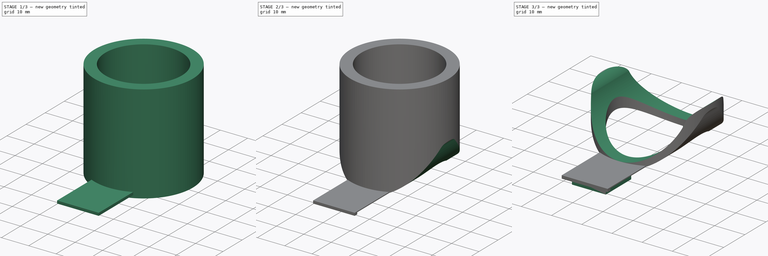
[diagram: build sequence overview — one tinted view per stage of 3, left to right]
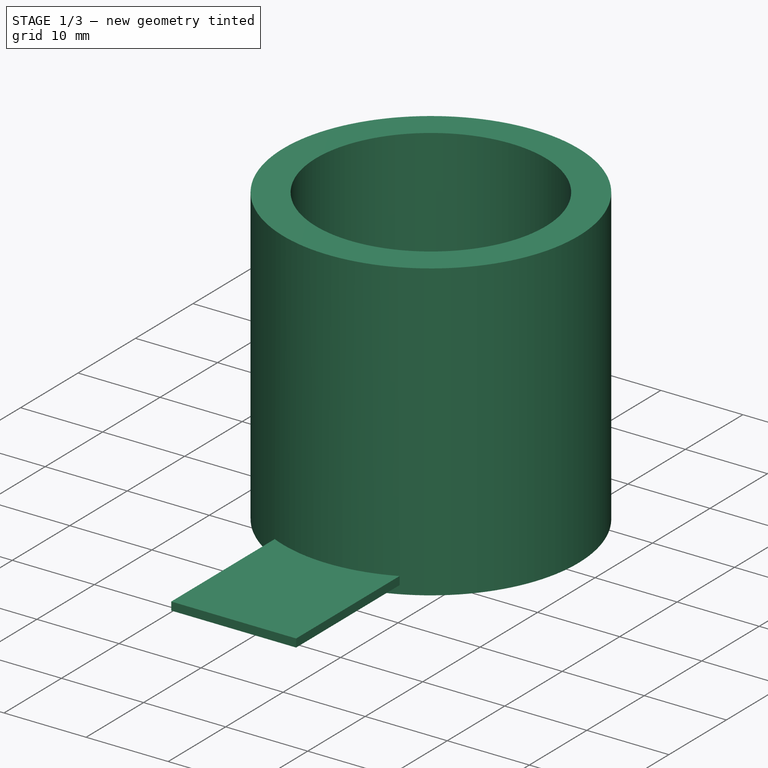
[diagram: stage 1 of 3 — iso view after this stage's code; geometry added in this stage tinted green]
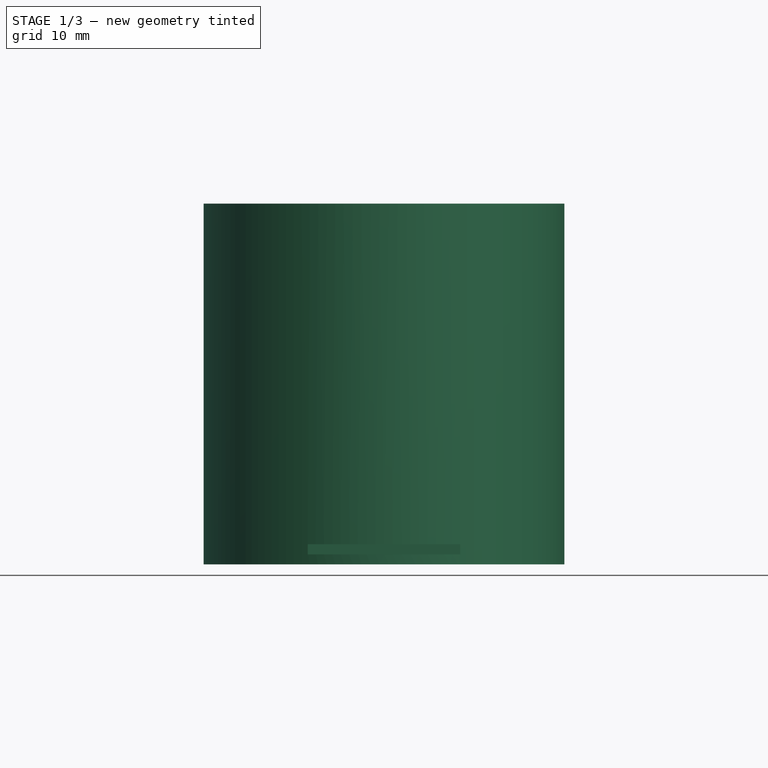
[diagram: stage 1 of 3 — front view after this stage's code; geometry added in this stage tinted green]
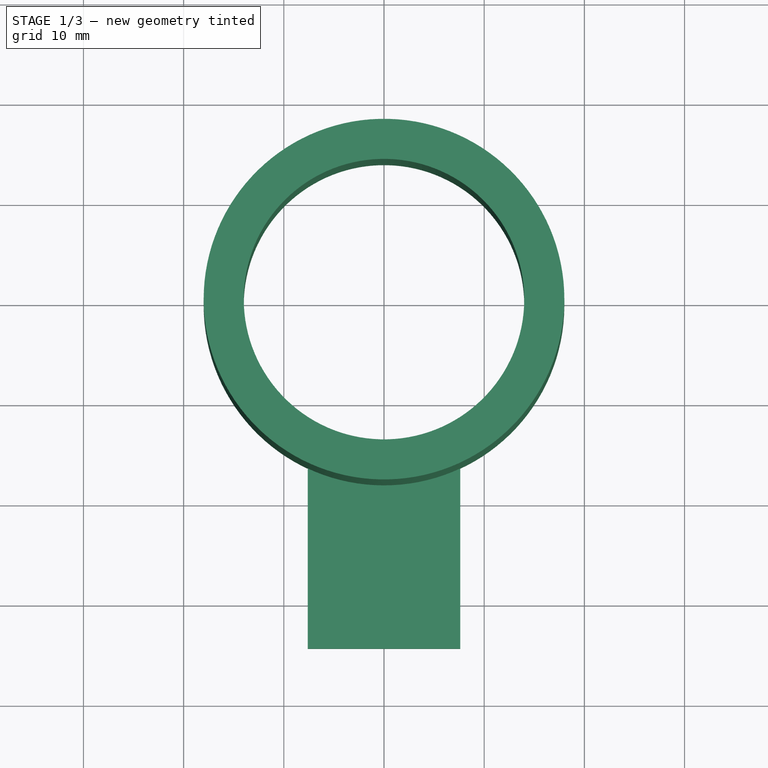
[diagram: stage 1 of 3 — top view after this stage's code; geometry added in this stage tinted green]
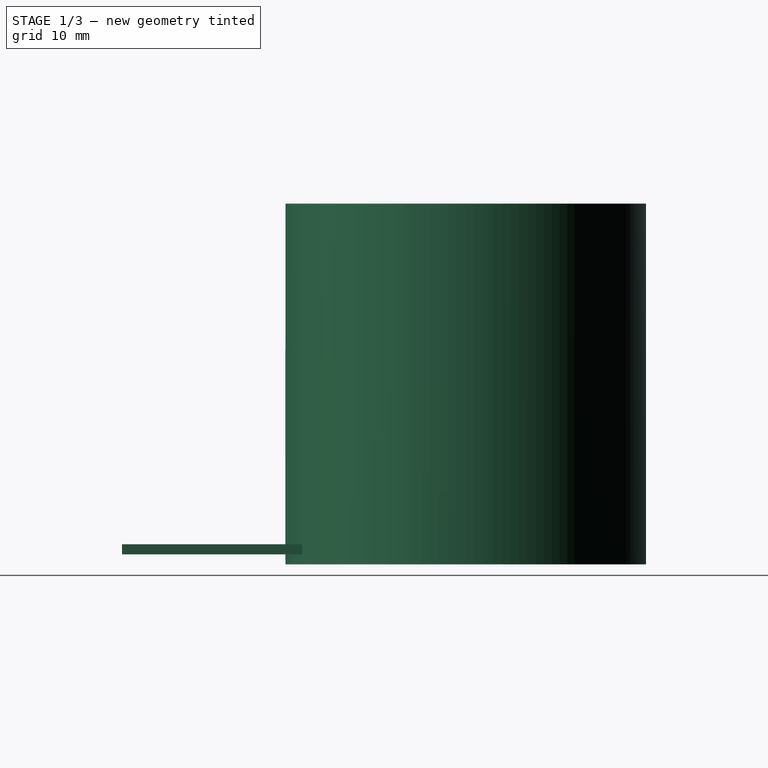
[diagram: stage 1 of 3 — right view after this stage's code; geometry added in this stage tinted green]
FCSTD DOCUMENT  (FreeCAD 0.19R24291 (Git))
Label: bruker7t_fus_single_coil_wrap2_cover2
License: All rights reserved
LicenseURL: http://en.wikipedia.org/wiki/All_rights_reserved
objects: Sketcher::SketchObject×8, PartDesign::Pad×5, PartDesign::Pocket×3, PartDesign::Body×1
note: 25 computed .brp shape members not serialized (recipe doc carries the construction recipe); baked Part::Feature solids carry a one-line shape summary decoded from their .brp

FEATURE [Sketcher::SketchObject] Sketch
  FullyConstrained = true
  MapMode = 5
  Support = -> [XY_Plane]
  sketch-geometry (1):
    g0: Circle CenterX=0 CenterY=0 CenterZ=0 NormalX=0 NormalY=0 NormalZ=1 AngleXU=0 Radius=18
  constraints (2):
    c: Radius(g0) = 18
    c: Coincident(g0,g-1)
FEATURE [PartDesign::Pad] Pad
  Direction = (1,1,1)
  Length = 36
  Length2 = 100
  Profile = -> Sketch
  Refine = true
  Type = 0
FEATURE [Sketcher::SketchObject] Sketch001
  FullyConstrained = true
  MapMode = 5
  Support = -> [XY_Plane]
  sketch-geometry (1):
    g0: Circle CenterX=0 CenterY=0 CenterZ=0 NormalX=0 NormalY=0 NormalZ=1 AngleXU=0 Radius=14
  constraints (2):
    c: Coincident(g0,g-1)
    c: Radius(g0) = 14
FEATURE [PartDesign::Pocket] Pocket
  BaseFeature = -> Pad
  Length = 5
  Length2 = 100
  Profile = -> Sketch001
  Refine = true
  Reversed = true
  Type = 1
FEATURE [Sketcher::SketchObject] Sketch002
  FullyConstrained = true
  MapMode = 5
  Placement = pos=(0,0,0) rot=(1,0,0;1.5708rad)
  Support = -> [XZ_Plane]
  sketch-geometry (8):
    g0: LineSegment StartX=-40 StartY=-10 StartZ=0 EndX=40 EndY=-10 EndZ=0
    g1: LineSegment StartX=40 StartY=-10 StartZ=0 EndX=40 EndY=18 EndZ=0
    g2: LineSegment StartX=40 StartY=18 StartZ=0 EndX=22 EndY=18 EndZ=0
    g3: ArcOfCircle CenterX=0 CenterY=18 CenterZ=0 NormalX=0 NormalY=0 NormalZ=1 AngleXU=0 Radius=18 StartAngle=3.34093 EndAngle=6.08385
    g4: LineSegment StartX=-22 StartY=18 StartZ=0 EndX=-40 EndY=18 EndZ=0
    g5: LineSegment StartX=-40 StartY=18 StartZ=0 EndX=-40 EndY=-10 EndZ=0
    g6: ArcOfCircle CenterX=-22 CenterY=13.5556 CenterZ=0 NormalX=0 NormalY=0 NormalZ=1 AngleXU=0 Radius=4.44444 StartAngle=0.199337 EndAngle=1.5708
    g7: ArcOfCircle CenterX=22 CenterY=13.5556 CenterZ=0 NormalX=0 NormalY=0 NormalZ=1 AngleXU=0 Radius=4.44444 StartAngle=1.5708 EndAngle=2.94226
  constraints (23):
    c: Coincident(g0,g1)
    c: Coincident(g1,g2)
    c: Horizontal(g2)
    c: Horizontal(g4)
    c: Coincident(g4,g5)
    c: Vertical(g5)
    c: Vertical(g1)
    c: PointOnObject(g3,g-2)
    c: Equal(g4,g2)
    c: DistanceX(g0,g0) = 80
    c: Radius(g3) = 18
    c: Coincident(g5,g0)
    c: Horizontal(g0)
    c: DistanceY(g-1,g3) = 18
    c: DistanceY(g1,g1) = 28
    c: DistanceY(g0,g-1) = 10
    c: Horizontal(g3,g3)
    c: DistanceX(g4,g4) = 18
    c: Symmetric(g2,g4,g-2)
    c: Tangent(g6,g3) = 1.5708
    c: Tangent(g6,g4) = -1.5708
    c: Coincident(g3,g7)
    c: Tangent(g7,g2) = -1.5708
FEATURE [Sketcher::SketchObject] Sketch003
  FullyConstrained = false
  MapMode = 5
  Placement = pos=(0,0,0) rot=(1,0,0;1.5708rad)
  Support = -> [XZ_Plane]
  sketch-geometry (8):
    g0: LineSegment StartX=-30 StartY=36 StartZ=0 EndX=30 EndY=36 EndZ=0
    g1: LineSegment StartX=30 StartY=36 StartZ=0 EndX=30 EndY=18 EndZ=0
    g2: LineSegment StartX=30 StartY=18 StartZ=0 EndX=20.4369 EndY=18 EndZ=0
    g3: ArcOfCircle CenterX=-4e-16 CenterY=18 CenterZ=0 NormalX=0 NormalY=0 NormalZ=1 AngleXU=0 Radius=16 StartAngle=3.35242 EndAngle=6.07235
    g4: LineSegment StartX=-20.4369 StartY=18 StartZ=0 EndX=-30 EndY=18 EndZ=0
    g5: LineSegment StartX=-30 StartY=18 StartZ=0 EndX=-30 EndY=36 EndZ=0
    g6: ArcOfCircle CenterX=20.4369 CenterY=12.898 CenterZ=0 NormalX=0 NormalY=0 NormalZ=1 AngleXU=0 Radius=5.10204 StartAngle=1.5708 EndAngle=2.79072
    g7: ArcOfCircle CenterX=-20.4369 CenterY=12.898 CenterZ=0 NormalX=0 NormalY=0 NormalZ=1 AngleXU=0 Radius=5.10204 StartAngle=0.350875 EndAngle=1.5708
  constraints (20):
    c: Coincident(g0,g1)
    c: Coincident(g1,g2)
    c: Horizontal(g2)
    c: Horizontal(g4)
    c: Coincident(g4,g5)
    c: Coincident(g5,g0)
    c: Vertical(g1)
    c: Vertical(g5)
    c: DistanceX(g0,g0) = 60
    c: Symmetric(g0,g0,g-2)
    c: Radius(g3) = 16
    c: DistanceY(g-1,g3) = 18
    c: DistanceY(g-1,g2) = 18
    c: DistanceY(g1,g1) = 18
    c: Symmetric(g3,g3,g-2)
    c: Symmetric(g2,g4,g-2)
    c: Coincident(g6,g3)
    c: Tangent(g2,g6) = -1.5708
    c: Coincident(g7,g3)
    c: Tangent(g4,g7) = -1.5708
FEATURE [Sketcher::SketchObject] Sketch004
  AttachmentOffset = pos=(0,0,1) rot=(0,0,1;0rad)
  FullyConstrained = false
  MapMode = 5
  Placement = pos=(0,0,1) rot=(0,0,1;0rad)
  Support = -> [XY_Plane]
  sketch-geometry (6):
    g0: LineSegment StartX=-7.60713 StartY=-16.3135 StartZ=0 EndX=7.60713 EndY=-16.3135 EndZ=0
    g1: LineSegment StartX=7.60713 StartY=-16.3135 StartZ=0 EndX=7.60713 EndY=-34.3135 EndZ=0
    g2: LineSegment StartX=7.60713 StartY=-34.3135 StartZ=0 EndX=-7.60713 EndY=-34.3135 EndZ=0
    g3: LineSegment StartX=-7.60713 StartY=-34.3135 StartZ=0 EndX=-7.60713 EndY=-16.3135 EndZ=0
    g4: LineSegment StartX=0 StartY=0 StartZ=0 EndX=7.60713 EndY=-16.3135 EndZ=0
    g5: LineSegment StartX=0 StartY=0 StartZ=0 EndX=0 EndY=21.3756 EndZ=0
  constraints (15):
    c: Coincident(g0,g1)
    c: Coincident(g1,g2)
    c: Coincident(g2,g3)
    c: Coincident(g3,g0)
    c: Horizontal(g2)
    c: Vertical(g1)
    c: Vertical(g3)
    c: DistanceY(g1,g1) = 18
    c: Symmetric(g0,g0,g-2)
    c: Coincident(g4,g-1)
    c: Coincident(g4,g0)
    c: Coincident(g5,g-1)
    c: Vertical(g5)
    c: Angle(g4,g5) = 2.70526
    c: Distance(g4) = 18
FEATURE [PartDesign::Pad] Pad001
  BaseFeature = -> Pocket
  Direction = (1,1,1)
  Length = 1
  Length2 = 100
  Profile = -> Sketch004
  Refine = true
  Type = 0
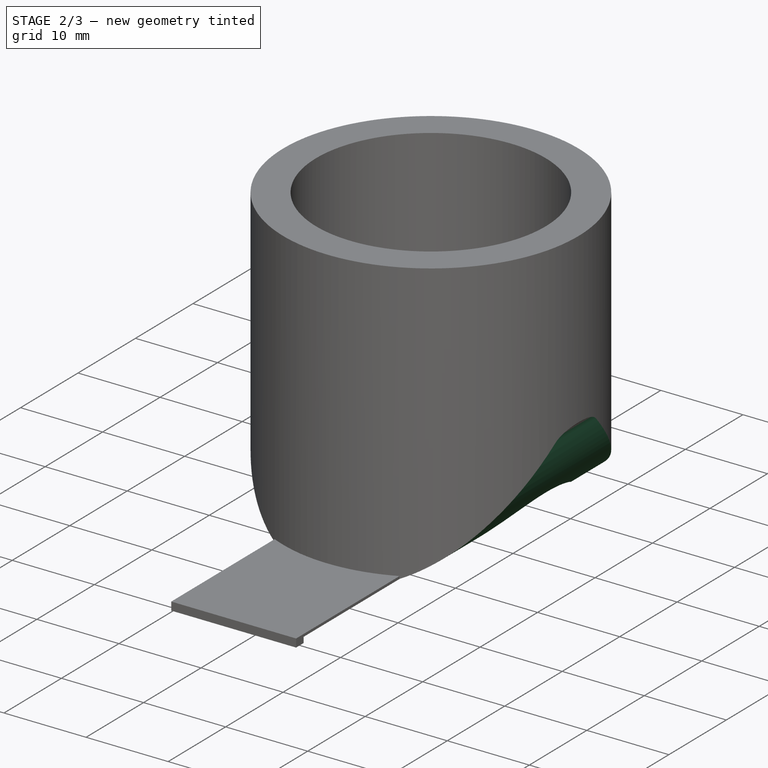
[diagram: stage 2 of 3 — iso view after this stage's code; geometry added in this stage tinted green]
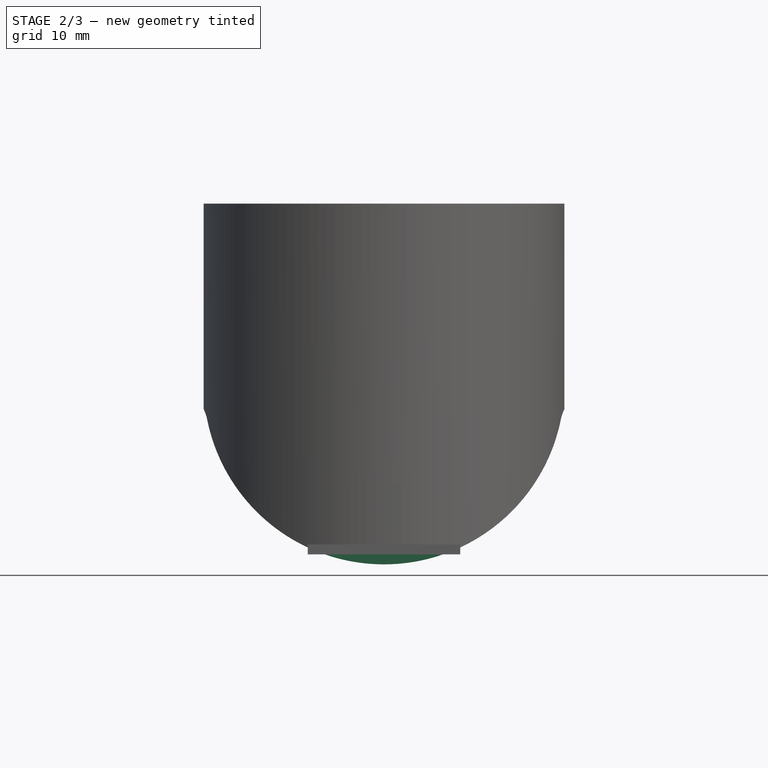
[diagram: stage 2 of 3 — front view after this stage's code; geometry added in this stage tinted green]
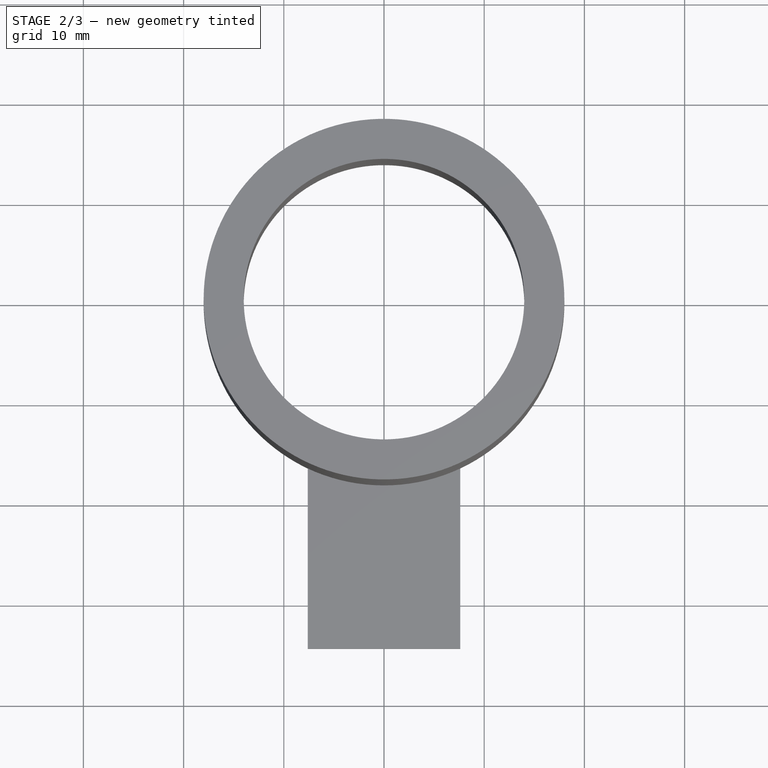
[diagram: stage 2 of 3 — top view after this stage's code; geometry added in this stage tinted green]
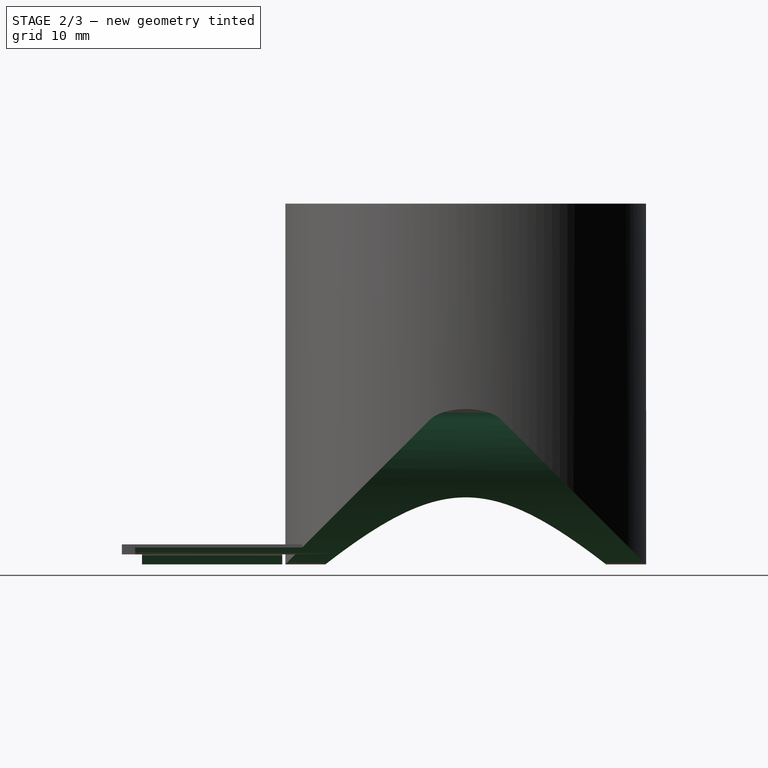
[diagram: stage 2 of 3 — right view after this stage's code; geometry added in this stage tinted green]
FEATURE [Sketcher::SketchObject] Sketch005
  FullyConstrained = false
  MapMode = 5
  Support = -> [XY_Plane]
  sketch-geometry (4):
    g0: LineSegment StartX=5.60713 StartY=-32.3135 StartZ=0 EndX=-5.60713 EndY=-32.3135 EndZ=0
    g1: LineSegment StartX=-5.60713 StartY=-32.3135 StartZ=0 EndX=-5.60713 EndY=-18.3135 EndZ=0
    g2: LineSegment StartX=-5.60713 StartY=-18.3135 StartZ=0 EndX=5.60713 EndY=-18.3135 EndZ=0
    g3: LineSegment StartX=5.60713 StartY=-18.3135 StartZ=0 EndX=5.60713 EndY=-32.3135 EndZ=0
  constraints (8):
    c: Coincident(g0,g1)
    c: Coincident(g1,g2)
    c: Coincident(g2,g3)
    c: Coincident(g3,g0)
    c: Horizontal(g2)
    c: Vertical(g1)
    c: Vertical(g3)
    c: Symmetric(g0,g0,g-2)
FEATURE [PartDesign::Pad] Pad002
  BaseFeature = -> Pad001
  Direction = (1,1,1)
  Length = 2
  Length2 = 100
  Profile = -> Sketch005
  Refine = true
  Type = 0
FEATURE [PartDesign::Pocket] Pocket001
  BaseFeature = -> Pad002
  Length = 66
  Length2 = 100
  Midplane = true
  Profile = -> Sketch002
  Refine = true
  Type = 0
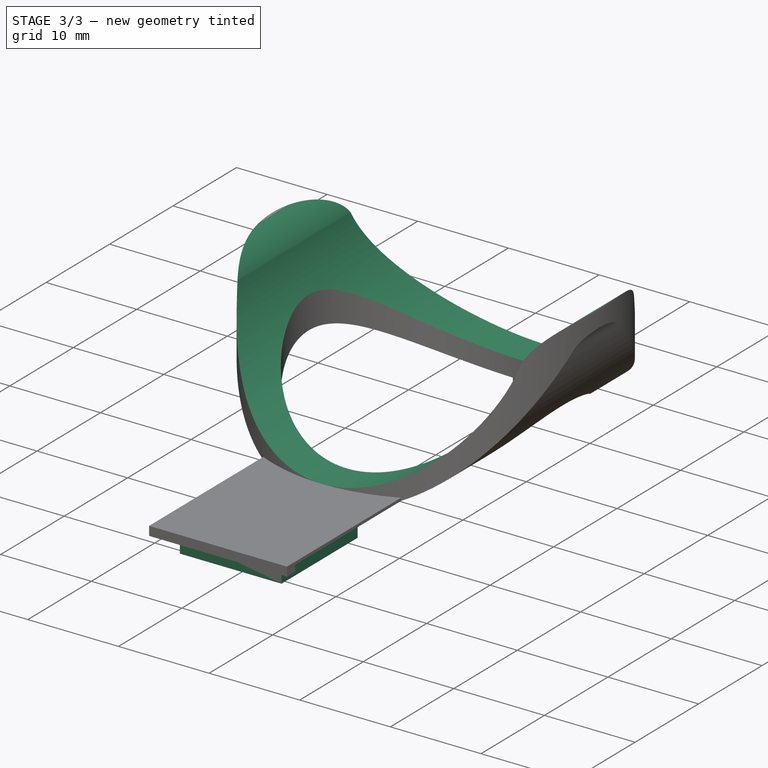
[diagram: stage 3 of 3 — iso view after this stage's code; geometry added in this stage tinted green]
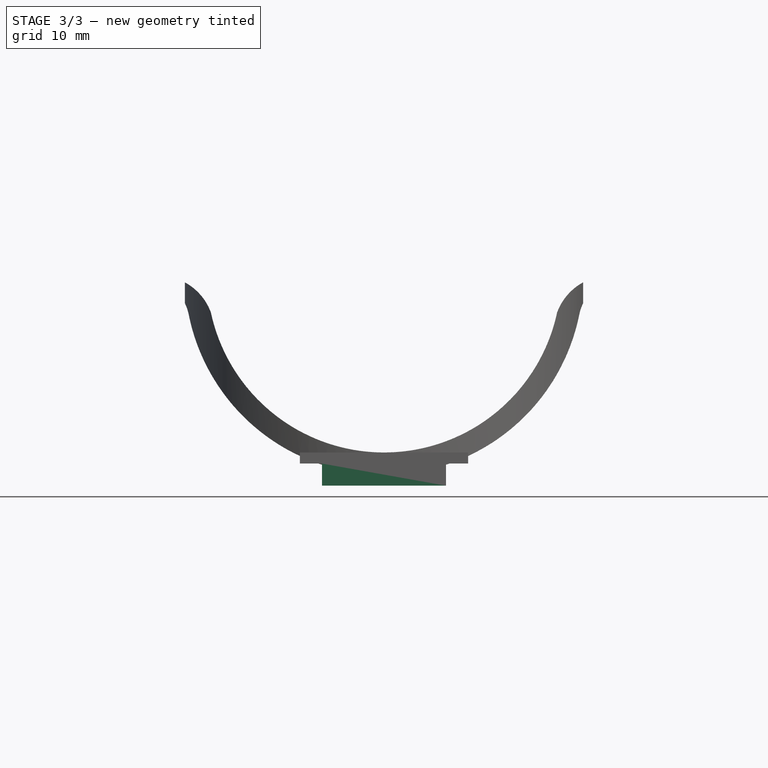
[diagram: stage 3 of 3 — front view after this stage's code; geometry added in this stage tinted green]
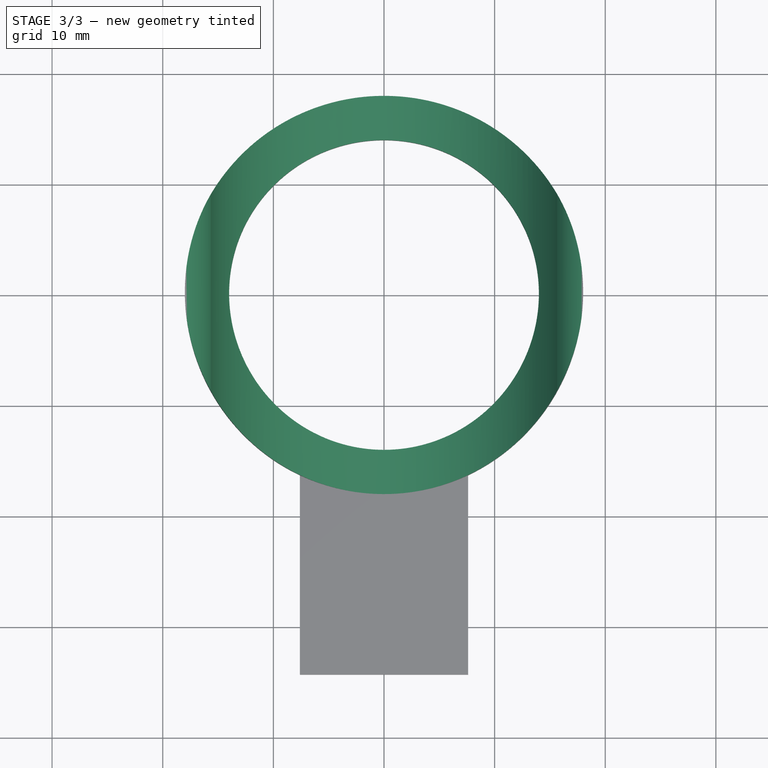
[diagram: stage 3 of 3 — top view after this stage's code; geometry added in this stage tinted green]
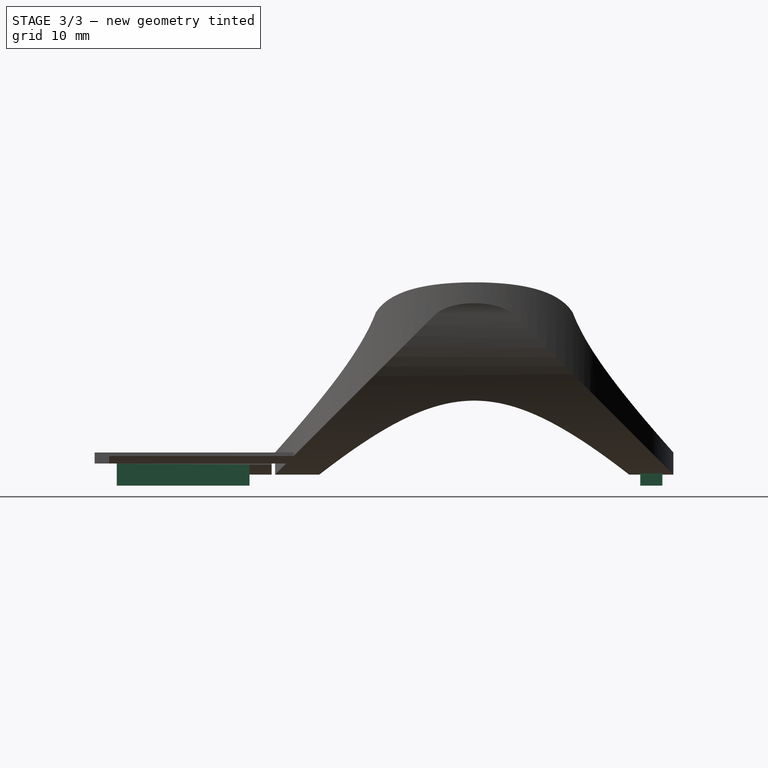
[diagram: stage 3 of 3 — right view after this stage's code; geometry added in this stage tinted green]
FEATURE [PartDesign::Pocket] Pocket002
  BaseFeature = -> Pocket001
  Length = 5
  Length2 = 100
  Midplane = true
  Profile = -> Sketch003
  Refine = true
  Type = 1
FEATURE [Sketcher::SketchObject] Sketch007
  FullyConstrained = true
  MapMode = 5
  Support = -> [XY_Plane]
  sketch-geometry (4):
    g0: LineSegment StartX=-2 StartY=17 StartZ=0 EndX=2 EndY=17 EndZ=0
    g1: LineSegment StartX=2 StartY=17 StartZ=0 EndX=2 EndY=15 EndZ=0
    g2: LineSegment StartX=2 StartY=15 StartZ=0 EndX=-2 EndY=15 EndZ=0
    g3: LineSegment StartX=-2 StartY=15 StartZ=0 EndX=-2 EndY=17 EndZ=0
  constraints (11):
    c: Coincident(g0,g1)
    c: Coincident(g1,g2)
    c: Coincident(g2,g3)
    c: Coincident(g3,g0)
    c: Horizontal(g0)
    c: Vertical(g1)
    c: Vertical(g3)
    c: DistanceY(g1,g1) = 2
    c: Symmetric(g1,g2,g-2)
    c: DistanceX(g2,g2) = 4
    c: DistanceY(g-1,g1) = 15
FEATURE [PartDesign::Pad] Pad003
  BaseFeature = -> Pocket002
  Direction = (1,1,1)
  Length = 2
  Length2 = 100
  Midplane = true
  Profile = -> Sketch007
  Refine = true
  Type = 0
FEATURE [Sketcher::SketchObject] Sketch008
  AttachmentOffset = pos=(0,0,2) rot=(0,0,1;0rad)
  ExternalGeometry = -> [Pad003]
  FullyConstrained = true
  MapMode = 5
  Placement = pos=(0,0,2) rot=(0,0,1;0rad)
  Support = -> [XY_Plane]
  sketch-geometry (4):
    g0: LineSegment StartX=-5.60713 StartY=-20.3135 StartZ=0 EndX=5.60713 EndY=-20.3135 EndZ=0
    g1: LineSegment StartX=5.60713 StartY=-20.3135 StartZ=0 EndX=5.60713 EndY=-32.3135 EndZ=0
    g2: LineSegment StartX=5.60713 StartY=-32.3135 StartZ=0 EndX=-5.60713 EndY=-32.3135 EndZ=0
    g3: LineSegment StartX=-5.60713 StartY=-32.3135 StartZ=0 EndX=-5.60713 EndY=-20.3135 EndZ=0
  constraints (11):
    c: Coincident(g0,g1)
    c: Coincident(g1,g2)
    c: Coincident(g2,g3)
    c: Coincident(g3,g0)
    c: Horizontal(g2)
    c: Vertical(g1)
    c: Vertical(g3)
    c: Symmetric(g0,g0,g-2)
    c: DistanceY(g0,g-5) = 2
    c: DistanceX(g1,g-4) = 2
    c: DistanceY(g-4,g1) = 2
FEATURE [PartDesign::Pad] Pad004
  BaseFeature = -> Pad003
  Direction = (1,1,1)
  Length = 3
  Length2 = 100
  Profile = -> Sketch008
  Refine = true
  Reversed = true
  Type = 0
FEATURE [PartDesign::Body] Body
  Group = -> [Sketch,Pad,Sketch001,Pocket,Pad001,Pad002,Sketch002,Pocket001,Sketch003,Pocket002,Sketch004,Sketch005,Sketch007,Pad003,Sketch008,Pad004]
  Origin = -> Origin
  Tip = -> Pad004
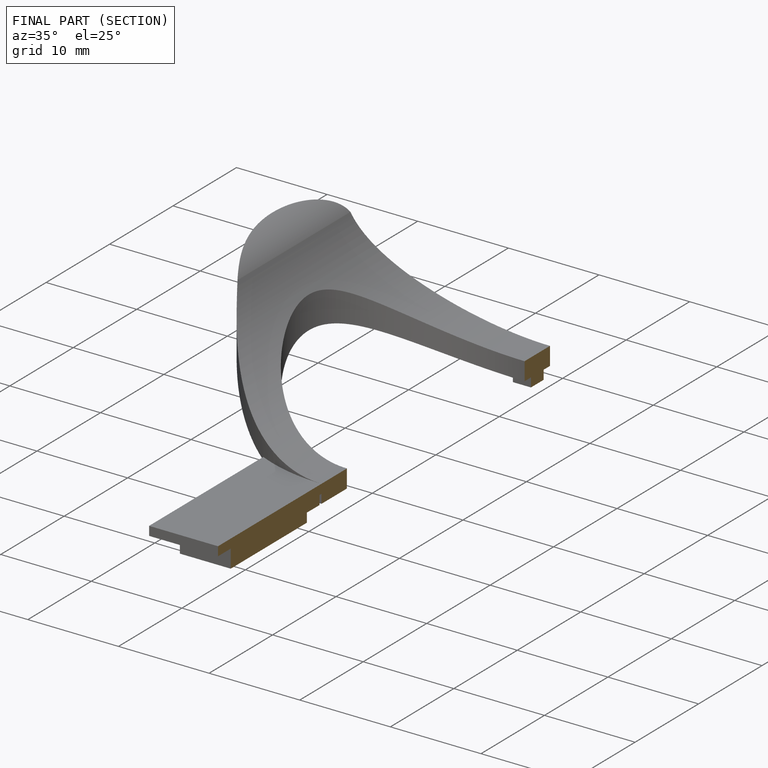
[diagram: finished part — half-section view (interior)]
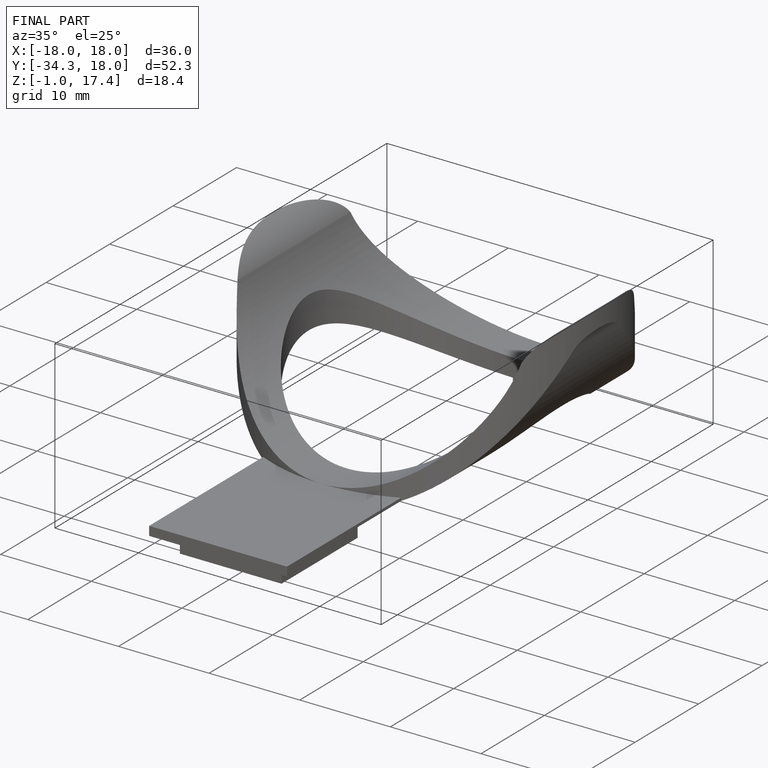
[diagram: finished part — iso view with bounding-box wireframe]
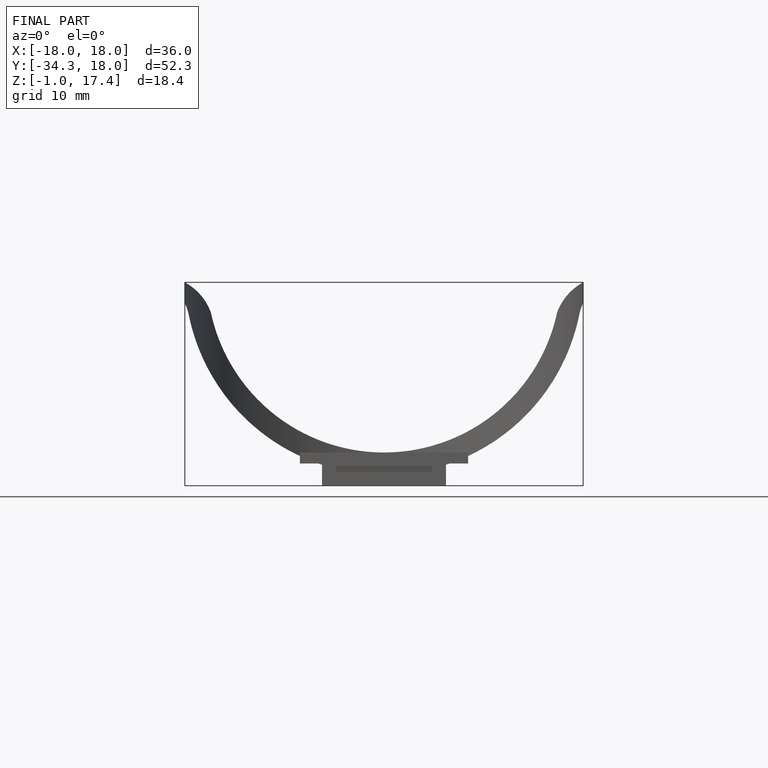
[diagram: finished part — front view with bounding-box wireframe]
